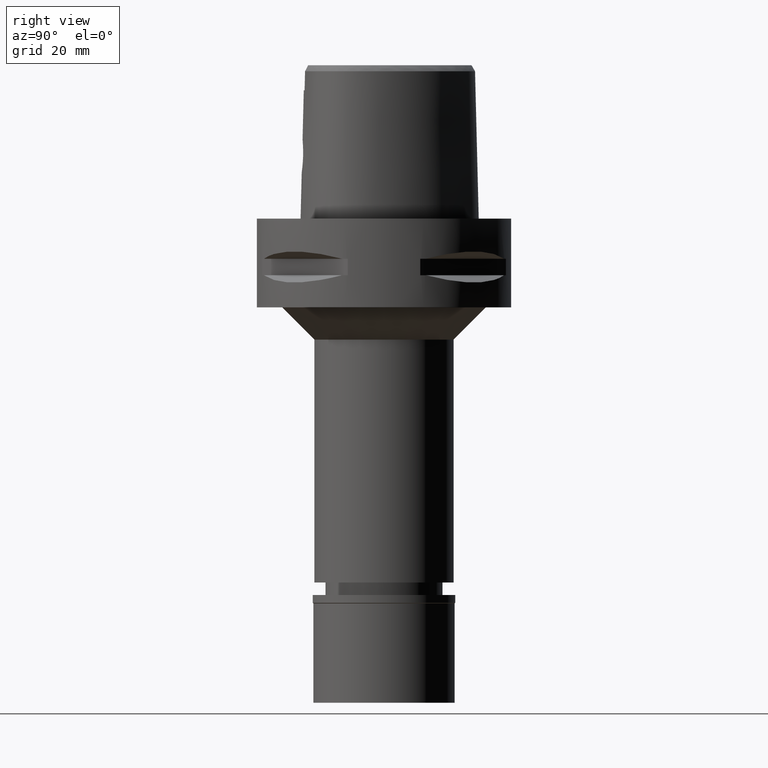
[diagram: clean part render]
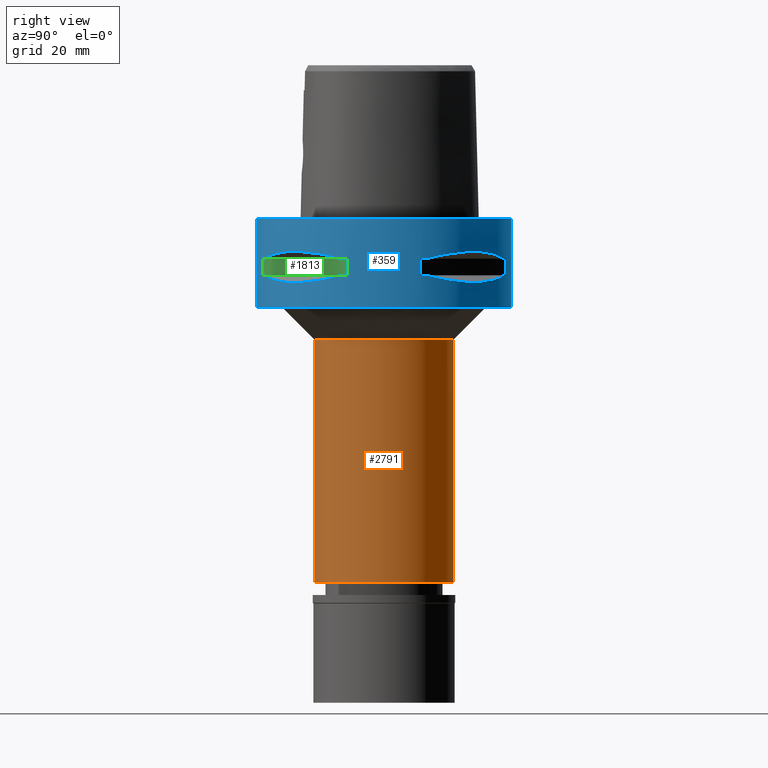
[diagram: same view with three faces highlighted in distinct colors, each labeled with its STEP entity id]
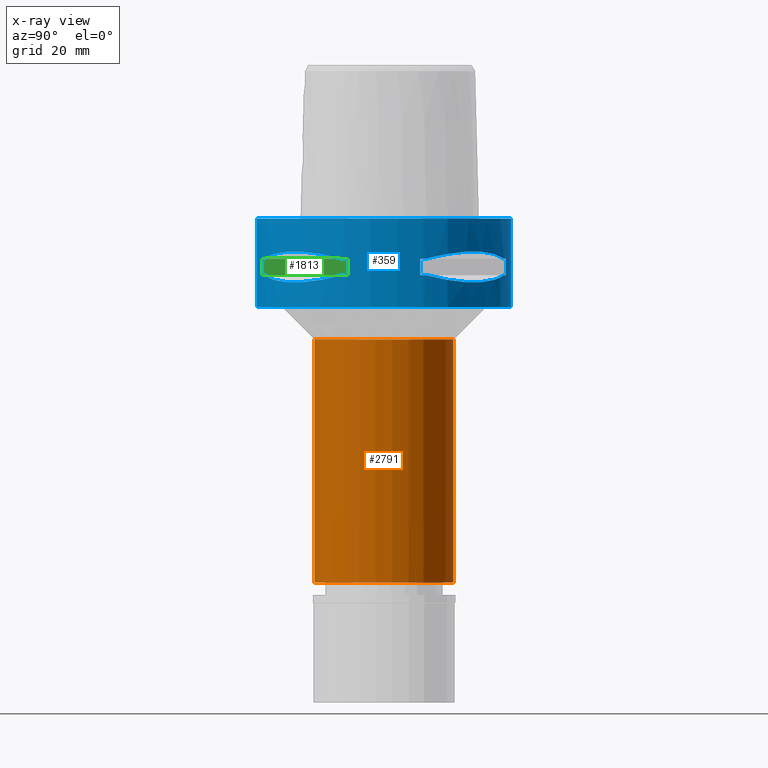
[diagram: x-ray of the same camera — body ghosted, the three highlighted faces saturated]
A machine part, right view with three faces highlighted in distinct colors.
The next image is the same camera in x-ray (body ghosted, the three faces saturated) — at least one of them is partly hidden behind the body in this view.
Their STEP definitions:

[orange] entity #2791 — the highlighted cylindrical surface (partial cylindrical patch) has radius 17.25 mm, axis along (0, 0, -1).
#21 = EDGE_CURVE ( 'NONE', #2501, #4795, #2390, .T. ) ;
#68 = AXIS2_PLACEMENT_3D ( 'NONE', #2771, #710, #4263 ) ;
#198 = DIRECTION ( 'NONE',  ( 0.0000000000000000000, 0.0000000000000000000, -1.000000000000000000 ) ) ;
#461 = DIRECTION ( 'NONE',  ( 0.0000000000000000000, 0.0000000000000000000, -1.000000000000000000 ) ) ;
#583 = VECTOR ( 'NONE', #3112, 1000.000000000000000 ) ;
#630 = CARTESIAN_POINT ( 'NONE',  ( 0.0000000000000000000, 0.0000000000000000000, -30.00000000000000000 ) ) ;
#710 = DIRECTION ( 'NONE',  ( 0.0000000000000000000, 0.0000000000000000000, 1.000000000000000000 ) ) ;
#742 = AXIS2_PLACEMENT_3D ( 'NONE', #3554, #461, #4408 ) ;
#798 = ORIENTED_EDGE ( 'NONE', *, *, #2126, .F. ) ;
#960 = CARTESIAN_POINT ( 'NONE',  ( 0.0000000000000000000, -17.25000000000000000, -30.00000000000000000 ) ) ;
#1630 = FACE_OUTER_BOUND ( 'NONE', #1893, .T. ) ;
#1632 = VERTEX_POINT ( 'NONE', #960 ) ;
#1783 = CARTESIAN_POINT ( 'NONE',  ( 0.0000000000000000000, -17.25000000000000000, -90.20000000000000284 ) ) ;
#1872 = ORIENTED_EDGE ( 'NONE', *, *, #3333, .T. ) ;
#1893 = EDGE_LOOP ( 'NONE', ( #3260, #1872, #1985, #798 ) ) ;
#1985 = ORIENTED_EDGE ( 'NONE', *, *, #21, .T. ) ;
#2126 = EDGE_CURVE ( 'NONE', #2373, #4795, #2614, .T. ) ;
#2373 = VERTEX_POINT ( 'NONE', #4975 ) ;
#2390 = CIRCLE ( 'NONE', #68, 17.25000000000000000 ) ;
#2421 = AXIS2_PLACEMENT_3D ( 'NONE', #630, #3024, #4921 ) ;
#2500 = CARTESIAN_POINT ( 'NONE',  ( 0.0000000000000000000, -17.25000000000000000, -30.00000000000000000 ) ) ;
#2501 = VERTEX_POINT ( 'NONE', #1783 ) ;
#2614 = LINE ( 'NONE', #3711, #2982 ) ;
#2771 = CARTESIAN_POINT ( 'NONE',  ( 0.0000000000000000000, 1.291390049700999962E-14, -90.20000000000000284 ) ) ;
#2791 = ADVANCED_FACE ( 'NONE', ( #1630 ), #4387, .T. ) ;
#2982 = VECTOR ( 'NONE', #198, 1000.000000000000000 ) ;
#3024 = DIRECTION ( 'NONE',  ( 0.0000000000000000000, 0.0000000000000000000, -1.000000000000000000 ) ) ;
#3112 = DIRECTION ( 'NONE',  ( 0.0000000000000000000, 0.0000000000000000000, -1.000000000000000000 ) ) ;
#3260 = ORIENTED_EDGE ( 'NONE', *, *, #4372, .T. ) ;
#3333 = EDGE_CURVE ( 'NONE', #1632, #2501, #3523, .T. ) ;
#3523 = LINE ( 'NONE', #2500, #583 ) ;
#3554 = CARTESIAN_POINT ( 'NONE',  ( 0.0000000000000000000, 1.291390049700999962E-14, 5.450000000000000178 ) ) ;
#3711 = CARTESIAN_POINT ( 'NONE',  ( 0.0000000000000000000, 17.25000000000000000, -30.00000000000000000 ) ) ;
#3761 = CARTESIAN_POINT ( 'NONE',  ( 0.0000000000000000000, 17.25000000000000000, -90.20000000000000284 ) ) ;
#4263 = DIRECTION ( 'NONE',  ( 0.0000000000000000000, -1.000000000000000000, 0.0000000000000000000 ) ) ;
#4372 = EDGE_CURVE ( 'NONE', #2373, #1632, #4698, .T. ) ;
#4387 = CYLINDRICAL_SURFACE ( 'NONE', #742, 17.25000000000000000 ) ;
#4408 = DIRECTION ( 'NONE',  ( 0.0000000000000000000, -1.000000000000000000, 0.0000000000000000000 ) ) ;
#4698 = CIRCLE ( 'NONE', #2421, 17.25000000000000000 ) ;
#4795 = VERTEX_POINT ( 'NONE', #3761 ) ;
#4921 = DIRECTION ( 'NONE',  ( 0.0000000000000000000, 1.000000000000000000, 0.0000000000000000000 ) ) ;
#4975 = CARTESIAN_POINT ( 'NONE',  ( 0.0000000000000000000, 17.25000000000000000, -30.00000000000000000 ) ) ;

[blue] entity #359 — the highlighted cylindrical surface (partial cylindrical patch) has radius 31.5 mm, axis along (0, 0, -1).
#27 = EDGE_CURVE ( 'NONE', #1301, #2772, #1161, .T. ) ;
#37 = CARTESIAN_POINT ( 'NONE',  ( 0.0000000000000000000, 1.291390049700999962E-14, -9.950000000000001066 ) ) ;
#78 = EDGE_CURVE ( 'NONE', #2821, #2772, #3616, .T. ) ;
#81 = DIRECTION ( 'NONE',  ( 0.0000000000000000000, 0.0000000000000000000, -1.000000000000000000 ) ) ;
#90 = VERTEX_POINT ( 'NONE', #1946 ) ;
#104 = CARTESIAN_POINT ( 'NONE',  ( 20.65093790438354659, 23.89673728053224266, -8.160641950982380877 ) ) ;
#113 = CARTESIAN_POINT ( 'NONE',  ( 26.60451452154948981, 16.86571563436761068, -15.39949295786298400 ) ) ;
#133 = EDGE_CURVE ( 'NONE', #817, #4701, #2794, .T. ) ;
#135 = DIRECTION ( 'NONE',  ( 0.0000000000000000000, 1.000000000000000000, 0.0000000000000000000 ) ) ;
#150 = ORIENTED_EDGE ( 'NONE', *, *, #3725, .T. ) ;
#196 = DIRECTION ( 'NONE',  ( 0.0000000000000000000, 0.0000000000000000000, 1.000000000000000000 ) ) ;
#202 = CARTESIAN_POINT ( 'NONE',  ( 0.0000000000000000000, -31.50000000000000000, -22.00000000000000000 ) ) ;
#247 = CARTESIAN_POINT ( 'NONE',  ( 14.89252659056626982, -27.86285265926842314, -8.892343702484653889 ) ) ;
#265 = DIRECTION ( 'NONE',  ( 0.0000000000000000000, -1.000000000000000000, 0.0000000000000000000 ) ) ;
#268 = ORIENTED_EDGE ( 'NONE', *, *, #1343, .F. ) ;
#296 = CARTESIAN_POINT ( 'NONE',  ( 26.70521063584643073, -16.70616724745833537, -8.624533381823839662 ) ) ;
#359 = ADVANCED_FACE ( 'NONE', ( #3149, #1916, #4644 ), #1134, .T. ) ;
#378 = CARTESIAN_POINT ( 'NONE',  ( 26.52527364208691196, -16.98999780422374428, -15.41788098766643778 ) ) ;
#391 = VERTEX_POINT ( 'NONE', #3461 ) ;
#409 = ORIENTED_EDGE ( 'NONE', *, *, #27, .F. ) ;
#415 = CARTESIAN_POINT ( 'NONE',  ( 10.44775724750000023, -29.71690375017999841, -9.950000000002001244 ) ) ;
#462 = CARTESIAN_POINT ( 'NONE',  ( 29.71690375017999841, 10.44775724750000023, -14.05000000000000071 ) ) ;
#473 = EDGE_CURVE ( 'NONE', #391, #890, #4832, .T. ) ;
#480 = ORIENTED_EDGE ( 'NONE', *, *, #473, .T. ) ;
#494 = CARTESIAN_POINT ( 'NONE',  ( 10.44775724750000023, 29.71690375017999841, -14.05000000000000071 ) ) ;
#497 = CARTESIAN_POINT ( 'NONE',  ( 29.31542262584909153, 11.58970337493671998, -14.35229357166876873 ) ) ;
#596 = CARTESIAN_POINT ( 'NONE',  ( 29.71690375017999841, 10.44775724750000023, -9.950000000002001244 ) ) ;
#609 = ORIENTED_EDGE ( 'NONE', *, *, #2227, .T. ) ;
#645 = DIRECTION ( 'NONE',  ( 0.0000000000000000000, 0.0000000000000000000, 1.000000000000000000 ) ) ;
#674 = DIRECTION ( 'NONE',  ( 0.2851174276831918153, -0.9584925938322735872, 0.0000000000000000000 ) ) ;
#715 = CARTESIAN_POINT ( 'NONE',  ( 18.59229662066524114, -25.43927894891024266, -8.371338736654152513 ) ) ;
#731 = AXIS2_PLACEMENT_3D ( 'NONE', #1615, #3984, #3134 ) ;
#736 = VERTEX_POINT ( 'NONE', #1750 ) ;
#783 = CARTESIAN_POINT ( 'NONE',  ( 26.01217882833934780, -17.76952662673609851, -15.52665221626610403 ) ) ;
#785 = DIRECTION ( 'NONE',  ( 0.0000000000000000000, 0.0000000000000000000, -1.000000000000000000 ) ) ;
#790 = VERTEX_POINT ( 'NONE', #4426 ) ;
#813 = CARTESIAN_POINT ( 'NONE',  ( 10.44775724750000023, 29.71690375017999841, -9.950000000002001244 ) ) ;
#817 = VERTEX_POINT ( 'NONE', #4863 ) ;
#833 = CARTESIAN_POINT ( 'NONE',  ( 28.91382665368659488, -12.73197616788688968, -14.65467361754156350 ) ) ;
#866 = CARTESIAN_POINT ( 'NONE',  ( 16.96123479565062198, 26.54368690921844731, -15.41365572341616819 ) ) ;
#890 = VERTEX_POINT ( 'NONE', #2363 ) ;
#940 = CARTESIAN_POINT ( 'NONE',  ( 11.58970337494564795, 29.31542262584650516, -9.647706428331577655 ) ) ;
#946 = EDGE_CURVE ( 'NONE', #2095, #90, #3057, .T. ) ;
#950 = CARTESIAN_POINT ( 'NONE',  ( 12.73197616791283870, 28.91382665367748928, -14.65467361754843800 ) ) ;
#965 = CARTESIAN_POINT ( 'NONE',  ( 16.70616724745935855, 26.70521063584607901, -8.624533381823574985 ) ) ;
#985 = ORIENTED_EDGE ( 'NONE', *, *, #3833, .F. ) ;
#992 = CARTESIAN_POINT ( 'NONE',  ( 26.52527364208612326, 16.98999780422257544, -8.582119012337276587 ) ) ;
#1005 = AXIS2_PLACEMENT_3D ( 'NONE', #2118, #196, #2565 ) ;
#1020 = LINE ( 'NONE', #4559, #1506 ) ;
#1041 = CARTESIAN_POINT ( 'NONE',  ( 26.64486562695888949, -16.80193241490598055, -8.610073162643717026 ) ) ;
#1056 = CARTESIAN_POINT ( 'NONE',  ( 30.19251670572000279, -8.981198972019999616, -14.05000000000000071 ) ) ;
#1103 = B_SPLINE_CURVE_WITH_KNOTS ( 'NONE', 3,
 ( #462, #497, #4051, #1395, #2144, #4388, #3686, #2093, #113, #1707, #3281, #4847, #2923, #4493, #4790, #2062, #2894, #1732, #3306, #1348, #866, #4470, #950, #3710 ),
 .UNSPECIFIED., .F., .F.,
 ( 4, 1, 1, 1, 1, 1, 2, 2, 2, 1, 1, 1, 1, 1, 2, 2, 4 ),
 ( 0.0000000000000000000, 0.1250000000000036360, 0.1875000000000056344, 0.2187500000000066336, 0.2343750000000070222, 0.2421875000000072164, 0.2460937500000072997, 0.2500000000000073830, 0.5000000000000048850, 0.6250000000000037748, 0.6875000000000031086, 0.7187500000000027756, 0.7343750000000025535, 0.7421875000000023315, 0.7460937500000024425, 0.7500000000000025535, 1.000000000000000000 ),
 .UNSPECIFIED. ) ;
#1134 = CYLINDRICAL_SURFACE ( 'NONE', #1326, 31.50000000000000000 ) ;
#1152 = CARTESIAN_POINT ( 'NONE',  ( 16.89910283486738862, -26.58330558444628977, -15.40446471307545906 ) ) ;
#1161 = LINE ( 'NONE', #3125, #1576 ) ;
#1166 = AXIS2_PLACEMENT_3D ( 'NONE', #1730, #2944, #135 ) ;
#1209 = CARTESIAN_POINT ( 'NONE',  ( 16.70616724746396642, -26.70521063584539334, -15.37546661818095473 ) ) ;
#1252 = DIRECTION ( 'NONE',  ( 0.0000000000000000000, 0.0000000000000000000, -1.000000000000000000 ) ) ;
#1301 = VERTEX_POINT ( 'NONE', #1387 ) ;
#1326 = AXIS2_PLACEMENT_3D ( 'NONE', #4259, #4594, #265 ) ;
#1334 = CIRCLE ( 'NONE', #5008, 31.50000000000000711 ) ;
#1343 = EDGE_CURVE ( 'NONE', #2821, #4844, #2193, .T. ) ;
#1348 = CARTESIAN_POINT ( 'NONE',  ( 16.98999780422272465, 26.52527364208734895, -15.41788098766619974 ) ) ;
#1387 = CARTESIAN_POINT ( 'NONE',  ( 8.981198972019999616, 30.19251670572000279, -14.05000000000000071 ) ) ;
#1395 = CARTESIAN_POINT ( 'NONE',  ( 27.64634172018763536, 15.11986997308868830, -15.11207862403486146 ) ) ;
#1396 = DIRECTION ( 'NONE',  ( 0.9433937698468619626, 0.3316748332540863653, 0.0000000000000000000 ) ) ;
#1401 = AXIS2_PLACEMENT_3D ( 'NONE', #1965, #3911, #2380 ) ;
#1406 = ORIENTED_EDGE ( 'NONE', *, *, #1747, .T. ) ;
#1412 = CARTESIAN_POINT ( 'NONE',  ( 16.48208282229046162, 26.84474411198835497, -8.659051162220773534 ) ) ;
#1439 = DIRECTION ( 'NONE',  ( 0.0000000000000000000, 0.0000000000000000000, -1.000000000000000000 ) ) ;
#1447 = CARTESIAN_POINT ( 'NONE',  ( 30.19251670572000279, -8.981198972016999349, -14.05000000000000071 ) ) ;
#1506 = VECTOR ( 'NONE', #1439, 1000.000000000000000 ) ;
#1507 = CARTESIAN_POINT ( 'NONE',  ( 28.62019653469107894, -13.25636937903083101, -9.251117744589583580 ) ) ;
#1516 = VECTOR ( 'NONE', #785, 1000.000000000000000 ) ;
#1522 = CARTESIAN_POINT ( 'NONE',  ( 26.48642424310494903, -17.05047092244668505, -15.42670883408004023 ) ) ;
#1538 = CARTESIAN_POINT ( 'NONE',  ( 30.19251670572000279, 8.981198972019999616, -9.950000000000001066 ) ) ;
#1543 = CARTESIAN_POINT ( 'NONE',  ( 16.80193241490956879, -26.64486562695862659, -15.38992683736056932 ) ) ;
#1576 = VECTOR ( 'NONE', #1990, 1000.000000000000000 ) ;
#1615 = CARTESIAN_POINT ( 'NONE',  ( 0.0000000000000000000, 1.291390049700999962E-14, -14.05000000000000071 ) ) ;
#1656 = CIRCLE ( 'NONE', #3224, 31.50000000000001776 ) ;
#1671 = VECTOR ( 'NONE', #81, 1000.000000000000000 ) ;
#1680 = CARTESIAN_POINT ( 'NONE',  ( 29.71690375017999841, -10.44775724750000023, -9.950000000002001244 ) ) ;
#1707 = CARTESIAN_POINT ( 'NONE',  ( 26.58330558444617608, 16.89910283486720743, -15.40446471307533827 ) ) ;
#1723 = CARTESIAN_POINT ( 'NONE',  ( 26.01217882833838502, 17.76952662673090444, -8.473347783739322736 ) ) ;
#1727 = EDGE_CURVE ( 'NONE', #3763, #2704, #1759, .T. ) ;
#1730 = CARTESIAN_POINT ( 'NONE',  ( 0.0000000000000000000, 1.291390049700999962E-14, 1.065814103639999922E-14 ) ) ;
#1732 = CARTESIAN_POINT ( 'NONE',  ( 17.14106442934976826, 26.42800887047588532, -15.43984550238772790 ) ) ;
#1747 = EDGE_CURVE ( 'NONE', #1301, #2677, #1656, .T. ) ;
#1750 = CARTESIAN_POINT ( 'NONE',  ( 29.71690375017999841, 10.44775724750000023, -14.05000000000000071 ) ) ;
#1759 = B_SPLINE_CURVE_WITH_KNOTS ( 'NONE', 3,
 ( #4242, #4577, #1507, #3773, #3009, #2643, #296, #1041, #3419, #1821, #4217, #2701, #3084, #4984, #715, #2288, #3392, #2310, #2620, #3866, #3795, #247, #3369, #3030 ),
 .UNSPECIFIED., .F., .F.,
 ( 4, 1, 1, 1, 1, 1, 2, 2, 2, 1, 1, 1, 1, 1, 2, 2, 4 ),
 ( 0.0000000000000000000, 0.1249999999999901190, 0.1874999999999851785, 0.2187499999999827915, 0.2343749999999815425, 0.2421874999999808487, 0.2460937499999805711, 0.2499999999999802935, 0.4999999999999875655, 0.6249999999999914513, 0.6874999999999933387, 0.7187499999999943379, 0.7343749999999947820, 0.7421874999999952260, 0.7460937499999953371, 0.7499999999999954481, 1.000000000000000000 ),
 .UNSPECIFIED. ) ;
#1767 = VECTOR ( 'NONE', #1860, 1000.000000000000000 ) ;
#1819 = VECTOR ( 'NONE', #2406, 1000.000000000000000 ) ;
#1821 = CARTESIAN_POINT ( 'NONE',  ( 26.58330558444509251, -16.89910283486691611, -8.595535286928141616 ) ) ;
#1849 = CARTESIAN_POINT ( 'NONE',  ( 0.0000000000000000000, 1.291390049700999962E-14, -14.05000000000000071 ) ) ;
#1854 = CARTESIAN_POINT ( 'NONE',  ( 30.19251670572000279, 8.981198972016999349, -14.05000000000000071 ) ) ;
#1860 = DIRECTION ( 'NONE',  ( 0.0000000000000000000, 0.0000000000000000000, 1.000000000000000000 ) ) ;
#1889 = ORIENTED_EDGE ( 'NONE', *, *, #3793, .F. ) ;
#1916 = FACE_BOUND ( 'NONE', #3501, .T. ) ;
#1946 = CARTESIAN_POINT ( 'NONE',  ( 29.71690375017999841, -10.44775724750000023, -14.05000000000000071 ) ) ;
#1965 = CARTESIAN_POINT ( 'NONE',  ( 0.0000000000000000000, 1.291390049700999962E-14, -9.950000000000001066 ) ) ;
#1980 = CARTESIAN_POINT ( 'NONE',  ( 26.42800887047440028, -17.14106442935327124, -15.43984550238855391 ) ) ;
#1990 = DIRECTION ( 'NONE',  ( 0.0000000000000000000, 0.0000000000000000000, 1.000000000000000000 ) ) ;
#2017 = ORIENTED_EDGE ( 'NONE', *, *, #3750, .T. ) ;
#2056 = ORIENTED_EDGE ( 'NONE', *, *, #133, .F. ) ;
#2062 = CARTESIAN_POINT ( 'NONE',  ( 17.76952662672345795, 26.01217882834468398, -15.52665221626313041 ) ) ;
#2081 = CIRCLE ( 'NONE', #3323, 31.50000000000001776 ) ;
#2084 = CARTESIAN_POINT ( 'NONE',  ( 16.89910283486650044, 26.58330558444540515, -8.595535286928189578 ) ) ;
#2093 = CARTESIAN_POINT ( 'NONE',  ( 26.64486562695979188, 16.80193241490626122, -15.38992683735969003 ) ) ;
#2095 = VERTEX_POINT ( 'NONE', #1056 ) ;
#2118 = CARTESIAN_POINT ( 'NONE',  ( 0.0000000000000000000, 1.291390049700999962E-14, -22.00000000000000000 ) ) ;
#2137 = CARTESIAN_POINT ( 'NONE',  ( 13.25636937903931489, 28.62019653468809466, -9.251117744587338265 ) ) ;
#2144 = CARTESIAN_POINT ( 'NONE',  ( 27.11872488589586183, 16.03138450077837618, -15.26880420107759129 ) ) ;
#2193 = B_SPLINE_CURVE_WITH_KNOTS ( 'NONE', 3,
 ( #3652, #940, #2137, #2533, #4483, #1412, #965, #2556, #4015, #2084, #4508, #104, #3274, #4810, #2961, #1723, #4092, #2885, #3351, #992, #4429, #2582, #4123, #596 ),
 .UNSPECIFIED., .F., .F.,
 ( 4, 1, 1, 1, 1, 1, 2, 2, 2, 1, 1, 1, 1, 1, 2, 2, 4 ),
 ( 0.0000000000000000000, 0.1249999999999969469, 0.1874999999999954203, 0.2187499999999947264, 0.2343749999999941436, 0.2421874999999936162, 0.2460937499999933387, 0.2499999999999930889, 0.4999999999999961142, 0.6249999999999975575, 0.6874999999999982236, 0.7187499999999982236, 0.7343749999999982236, 0.7421874999999983347, 0.7460937499999982236, 0.7499999999999981126, 1.000000000000000000 ),
 .UNSPECIFIED. ) ;
#2207 = LINE ( 'NONE', #1447, #1767 ) ;
#2227 = EDGE_CURVE ( 'NONE', #736, #3048, #1334, .T. ) ;
#2229 = DIRECTION ( 'NONE',  ( 0.0000000000000000000, 0.0000000000000000000, -1.000000000000000000 ) ) ;
#2288 = CARTESIAN_POINT ( 'NONE',  ( 17.76952662672849925, -26.01217882834354000, -8.473347783738203631 ) ) ;
#2310 = CARTESIAN_POINT ( 'NONE',  ( 17.14106442935058894, -26.42800887047499359, -8.560154497615220848 ) ) ;
#2317 = DIRECTION ( 'NONE',  ( 0.0000000000000000000, 0.0000000000000000000, 1.000000000000000000 ) ) ;
#2330 = DIRECTION ( 'NONE',  ( 0.0000000000000000000, 0.0000000000000000000, 1.000000000000000000 ) ) ;
#2363 = CARTESIAN_POINT ( 'NONE',  ( 8.981198972016999349, -30.19251670572000279, -14.05000000000000071 ) ) ;
#2380 = DIRECTION ( 'NONE',  ( 0.3316748332540863653, 0.9433937698468619626, 0.0000000000000000000 ) ) ;
#2397 = ORIENTED_EDGE ( 'NONE', *, *, #4728, .T. ) ;
#2403 = DIRECTION ( 'NONE',  ( 0.9433937698468619626, -0.3316748332540863653, 0.0000000000000000000 ) ) ;
#2406 = DIRECTION ( 'NONE',  ( 0.0000000000000000000, 0.0000000000000000000, -1.000000000000000000 ) ) ;
#2424 = CARTESIAN_POINT ( 'NONE',  ( 15.11986997312413017, -27.64634172017517599, -15.11207862404423352 ) ) ;
#2519 = ORIENTED_EDGE ( 'NONE', *, *, #2855, .T. ) ;
#2533 = CARTESIAN_POINT ( 'NONE',  ( 15.11986997309980474, 27.64634172018364922, -8.887921375965158077 ) ) ;
#2556 = CARTESIAN_POINT ( 'NONE',  ( 16.80193241490657030, 26.64486562695868344, -8.610073162643560707 ) ) ;
#2565 = DIRECTION ( 'NONE',  ( 0.0000000000000000000, -1.000000000000000000, 0.0000000000000000000 ) ) ;
#2582 = CARTESIAN_POINT ( 'NONE',  ( 27.86285265925623023, 14.89252659060093720, -8.892343702475475453 ) ) ;
#2620 = CARTESIAN_POINT ( 'NONE',  ( 17.05047092244479856, -26.48642424310496679, -8.573291165923654589 ) ) ;
#2630 = CARTESIAN_POINT ( 'NONE',  ( 0.0000000000000000000, 1.291390049700999962E-14, -9.950000000000001066 ) ) ;
#2643 = CARTESIAN_POINT ( 'NONE',  ( 26.84474411198906196, -16.48208282228847565, -8.659051162221302889 ) ) ;
#2677 = VERTEX_POINT ( 'NONE', #494 ) ;
#2701 = CARTESIAN_POINT ( 'NONE',  ( 23.89673728053854518, -20.65093790437009247, -8.160641950985311865 ) ) ;
#2704 = VERTEX_POINT ( 'NONE', #415 ) ;
#2735 = CARTESIAN_POINT ( 'NONE',  ( 23.08532645887072476, -21.46242677080184436, -15.83938991065908120 ) ) ;
#2761 = CARTESIAN_POINT ( 'NONE',  ( 26.29071741523342709, -17.35163608580722894, -15.46976201925860828 ) ) ;
#2772 = VERTEX_POINT ( 'NONE', #3152 ) ;
#2781 = CARTESIAN_POINT ( 'NONE',  ( 29.71690375017999841, 10.44775724750000023, -9.950000000002001244 ) ) ;
#2786 = CARTESIAN_POINT ( 'NONE',  ( 29.71690375017999841, -10.44775724750000023, -14.05000000000000071 ) ) ;
#2794 = LINE ( 'NONE', #4338, #1819 ) ;
#2808 = CARTESIAN_POINT ( 'NONE',  ( 16.03138450079904231, -27.11872488588858587, -15.26880420108306247 ) ) ;
#2821 = VERTEX_POINT ( 'NONE', #813 ) ;
#2830 = DIRECTION ( 'NONE',  ( 0.3316748332540863653, -0.9433937698468619626, 0.0000000000000000000 ) ) ;
#2832 = AXIS2_PLACEMENT_3D ( 'NONE', #2630, #645, #674 ) ;
#2855 = EDGE_CURVE ( 'NONE', #817, #3912, #3396, .T. ) ;
#2885 = CARTESIAN_POINT ( 'NONE',  ( 26.42800887047356895, 17.14106442935124619, -8.560154497615531710 ) ) ;
#2891 = AXIS2_PLACEMENT_3D ( 'NONE', #3787, #1252, #2830 ) ;
#2894 = CARTESIAN_POINT ( 'NONE',  ( 17.35163608580045391, 26.29071741523629768, -15.46976201925701133 ) ) ;
#2903 = VERTEX_POINT ( 'NONE', #3661 ) ;
#2923 = CARTESIAN_POINT ( 'NONE',  ( 21.46242677078534911, 23.08532645887771650, -15.83938991065519630 ) ) ;
#2944 = DIRECTION ( 'NONE',  ( 0.0000000000000000000, 0.0000000000000000000, -1.000000000000000000 ) ) ;
#2961 = CARTESIAN_POINT ( 'NONE',  ( 25.43927894890140351, 18.59229662066938005, -8.371338736656072754 ) ) ;
#3009 = CARTESIAN_POINT ( 'NONE',  ( 27.11872488589446917, -16.03138450078079202, -8.731195798924915152 ) ) ;
#3030 = CARTESIAN_POINT ( 'NONE',  ( 10.44775724750000023, -29.71690375017999841, -9.950000000002001244 ) ) ;
#3048 = VERTEX_POINT ( 'NONE', #1854 ) ;
#3057 = CIRCLE ( 'NONE', #731, 31.50000000000001776 ) ;
#3070 = EDGE_CURVE ( 'NONE', #3912, #3579, #1020, .T. ) ;
#3084 = CARTESIAN_POINT ( 'NONE',  ( 21.46242677079188610, -23.08532645887616397, -8.160610089345704310 ) ) ;
#3125 = CARTESIAN_POINT ( 'NONE',  ( 8.981198972016999349, 30.19251670572000279, -14.05000000000000071 ) ) ;
#3134 = DIRECTION ( 'NONE',  ( 0.9584925938322735872, -0.2851174276831918153, 0.0000000000000000000 ) ) ;
#3149 = FACE_OUTER_BOUND ( 'NONE', #3610, .T. ) ;
#3152 = CARTESIAN_POINT ( 'NONE',  ( 8.981198972016999349, 30.19251670572000279, -9.950000000000001066 ) ) ;
#3172 = EDGE_CURVE ( 'NONE', #3186, #4844, #2081, .T. ) ;
#3176 = CARTESIAN_POINT ( 'NONE',  ( 16.48208282229863286, -26.84474411198628374, -15.34094883778463903 ) ) ;
#3186 = VERTEX_POINT ( 'NONE', #1538 ) ;
#3201 = CARTESIAN_POINT ( 'NONE',  ( 8.981198972016999349, -30.19251670572000279, -9.950000000000001066 ) ) ;
#3224 = AXIS2_PLACEMENT_3D ( 'NONE', #1849, #4961, #4906 ) ;
#3274 = CARTESIAN_POINT ( 'NONE',  ( 23.08532645886942092, 21.46242677079501959, -8.160610089347166252 ) ) ;
#3281 = CARTESIAN_POINT ( 'NONE',  ( 25.32725744468093509, 18.86897208074246635, -15.69588095934180316 ) ) ;
#3306 = CARTESIAN_POINT ( 'NONE',  ( 17.05047092244466000, 26.48642424310579813, -15.42670883407955884 ) ) ;
#3323 = AXIS2_PLACEMENT_3D ( 'NONE', #3896, #2317, #3850 ) ;
#3331 = ORIENTED_EDGE ( 'NONE', *, *, #4100, .F. ) ;
#3338 = LINE ( 'NONE', #3634, #1671 ) ;
#3339 = CARTESIAN_POINT ( 'NONE',  ( 0.0000000000000000000, 1.291390049700999962E-14, -14.05000000000000071 ) ) ;
#3351 = CARTESIAN_POINT ( 'NONE',  ( 26.48642424310412835, 17.05047092244518225, -8.573291165923828672 ) ) ;
#3369 = CARTESIAN_POINT ( 'NONE',  ( 12.73197616787539488, -28.91382665369141591, -9.345326382464072879 ) ) ;
#3392 = CARTESIAN_POINT ( 'NONE',  ( 17.35163608580277383, -26.29071741523532424, -8.530237980745361881 ) ) ;
#3396 = CIRCLE ( 'NONE', #1166, 31.50000000000000000 ) ;
#3403 = CARTESIAN_POINT ( 'NONE',  ( 0.0000000000000000000, 31.50000000000000000, -22.00000000000000000 ) ) ;
#3419 = CARTESIAN_POINT ( 'NONE',  ( 26.60451452154862650, -16.86571563436707777, -8.600507042140504765 ) ) ;
#3432 = CARTESIAN_POINT ( 'NONE',  ( 0.0000000000000000000, -31.50000000000000000, 1.065814103639999922E-14 ) ) ;
#3443 = B_SPLINE_CURVE_WITH_KNOTS ( 'NONE', 3,
 ( #4713, #3903, #4304, #2424, #2808, #3176, #1209, #1543, #4663, #1152, #3880, #3925, #2735, #4688, #3511, #783, #2761, #1980, #1522, #378, #5045, #4280, #833, #2786 ),
 .UNSPECIFIED., .F., .F.,
 ( 4, 1, 1, 1, 1, 1, 2, 2, 2, 1, 1, 1, 1, 1, 2, 2, 4 ),
 ( 0.0000000000000000000, 0.1250000000000019429, 0.1875000000000029143, 0.2187500000000035250, 0.2343750000000039135, 0.2421875000000040801, 0.2460937500000041356, 0.2500000000000041633, 0.4999999999999987788, 0.6249999999999961142, 0.6874999999999948930, 0.7187499999999945599, 0.7343749999999943379, 0.7421874999999941158, 0.7460937499999938938, 0.7499999999999937828, 1.000000000000000000 ),
 .UNSPECIFIED. ) ;
#3461 = CARTESIAN_POINT ( 'NONE',  ( 10.44775724750000023, -29.71690375017999841, -14.05000000000000071 ) ) ;
#3501 = EDGE_LOOP ( 'NONE', ( #150, #985, #3533, #3331, #480, #3957, #2397, #4882 ) ) ;
#3511 = CARTESIAN_POINT ( 'NONE',  ( 25.43927894890251551, -18.59229662067769340, -15.62866126335070049 ) ) ;
#3533 = ORIENTED_EDGE ( 'NONE', *, *, #946, .T. ) ;
#3579 = VERTEX_POINT ( 'NONE', #202 ) ;
#3589 = ORIENTED_EDGE ( 'NONE', *, *, #3070, .T. ) ;
#3610 = EDGE_LOOP ( 'NONE', ( #2519, #3589, #2017, #2056 ) ) ;
#3616 = CIRCLE ( 'NONE', #1401, 31.50000000000000711 ) ;
#3634 = CARTESIAN_POINT ( 'NONE',  ( 30.19251670572000279, 8.981198972016999349, -9.950000000000001066 ) ) ;
#3652 = CARTESIAN_POINT ( 'NONE',  ( 10.44775724750000023, 29.71690375017999841, -9.950000000002001244 ) ) ;
#3661 = CARTESIAN_POINT ( 'NONE',  ( 8.981198972019999616, -30.19251670572000279, -9.950000000000001066 ) ) ;
#3686 = CARTESIAN_POINT ( 'NONE',  ( 26.70521063584740062, 16.70616724745824655, -15.37546661817944127 ) ) ;
#3710 = CARTESIAN_POINT ( 'NONE',  ( 10.44775724750000023, 29.71690375017999841, -14.05000000000000071 ) ) ;
#3724 = CIRCLE ( 'NONE', #1005, 31.50000000000000000 ) ;
#3725 = EDGE_CURVE ( 'NONE', #3763, #790, #4762, .T. ) ;
#3750 = EDGE_CURVE ( 'NONE', #3579, #4701, #3724, .T. ) ;
#3763 = VERTEX_POINT ( 'NONE', #1680 ) ;
#3773 = CARTESIAN_POINT ( 'NONE',  ( 27.64634172018588032, -15.11986997309343472, -8.887921375966845616 ) ) ;
#3787 = CARTESIAN_POINT ( 'NONE',  ( 0.0000000000000000000, 1.291390049700999962E-14, -14.05000000000000071 ) ) ;
#3793 = EDGE_CURVE ( 'NONE', #736, #2677, #1103, .T. ) ;
#3795 = CARTESIAN_POINT ( 'NONE',  ( 16.96123479565038394, -26.54368690921743479, -8.586344276587260183 ) ) ;
#3805 = EDGE_CURVE ( 'NONE', #3186, #3048, #3338, .T. ) ;
#3833 = EDGE_CURVE ( 'NONE', #2095, #790, #2207, .T. ) ;
#3850 = DIRECTION ( 'NONE',  ( 0.9584925938322735872, 0.2851174276831918153, 0.0000000000000000000 ) ) ;
#3866 = CARTESIAN_POINT ( 'NONE',  ( 16.98999780422239425, -26.52527364208654603, -8.582119012337193098 ) ) ;
#3880 = CARTESIAN_POINT ( 'NONE',  ( 18.86897208073048660, -25.32725744467385454, -15.69588095933403160 ) ) ;
#3896 = CARTESIAN_POINT ( 'NONE',  ( 0.0000000000000000000, 1.291390049700999962E-14, -9.950000000000001066 ) ) ;
#3903 = CARTESIAN_POINT ( 'NONE',  ( 11.58970337496372238, -29.31542262583958802, -14.35229357167590614 ) ) ;
#3911 = DIRECTION ( 'NONE',  ( 0.0000000000000000000, 0.0000000000000000000, 1.000000000000000000 ) ) ;
#3912 = VERTEX_POINT ( 'NONE', #3432 ) ;
#3925 = CARTESIAN_POINT ( 'NONE',  ( 20.65093790438460530, -23.89673728052242296, -15.83935804901696542 ) ) ;
#3950 = LINE ( 'NONE', #3201, #1516 ) ;
#3957 = ORIENTED_EDGE ( 'NONE', *, *, #4622, .F. ) ;
#3984 = DIRECTION ( 'NONE',  ( 0.0000000000000000000, 0.0000000000000000000, -1.000000000000000000 ) ) ;
#4015 = CARTESIAN_POINT ( 'NONE',  ( 16.86571563436737975, 26.60451452154853413, -8.600507042140424829 ) ) ;
#4051 = CARTESIAN_POINT ( 'NONE',  ( 28.62019653469295832, 13.25636937902403645, -14.74888225541133124 ) ) ;
#4092 = CARTESIAN_POINT ( 'NONE',  ( 26.29071741523256733, 17.35163608580407058, -8.530237980745962290 ) ) ;
#4100 = EDGE_CURVE ( 'NONE', #391, #90, #3443, .T. ) ;
#4114 = AXIS2_PLACEMENT_3D ( 'NONE', #37, #2330, #2403 ) ;
#4123 = CARTESIAN_POINT ( 'NONE',  ( 28.91382665367922655, 12.73197616791006936, -9.345326382454889114 ) ) ;
#4217 = CARTESIAN_POINT ( 'NONE',  ( 25.32725744469765772, -18.86897208070858056, -8.304119040668121343 ) ) ;
#4242 = CARTESIAN_POINT ( 'NONE',  ( 29.71690375017999841, -10.44775724750000023, -9.950000000002001244 ) ) ;
#4259 = CARTESIAN_POINT ( 'NONE',  ( 0.0000000000000000000, 1.291390049700999962E-14, 5.450000000000000178 ) ) ;
#4269 = ORIENTED_EDGE ( 'NONE', *, *, #3805, .F. ) ;
#4280 = CARTESIAN_POINT ( 'NONE',  ( 27.86285265926396093, -14.89252659057812345, -15.10765629752127559 ) ) ;
#4304 = CARTESIAN_POINT ( 'NONE',  ( 13.25636937907128399, -28.62019653467633518, -14.74888225542383857 ) ) ;
#4314 = EDGE_LOOP ( 'NONE', ( #4656, #409, #1406, #1889, #609, #4269, #4826, #268 ) ) ;
#4338 = CARTESIAN_POINT ( 'NONE',  ( 0.0000000000000000000, 31.50000000000000000, 0.0000000000000000000 ) ) ;
#4388 = CARTESIAN_POINT ( 'NONE',  ( 26.84474411199017752, 16.48208282228755550, -15.34094883778170093 ) ) ;
#4426 = CARTESIAN_POINT ( 'NONE',  ( 30.19251670572000279, -8.981198972016999349, -9.950000000000001066 ) ) ;
#4429 = CARTESIAN_POINT ( 'NONE',  ( 26.54368690921762308, 16.96123479564984038, -8.586344276587400515 ) ) ;
#4470 = CARTESIAN_POINT ( 'NONE',  ( 14.89252659060408668, 27.86285265925483046, -15.10765629752815009 ) ) ;
#4483 = CARTESIAN_POINT ( 'NONE',  ( 16.03138450078449750, 27.11872488589316887, -8.731195798923925722 ) ) ;
#4493 = CARTESIAN_POINT ( 'NONE',  ( 20.18579225686753986, 24.23018836744649462, -15.78559396979147422 ) ) ;
#4508 = CARTESIAN_POINT ( 'NONE',  ( 18.86897208073565579, 25.32725744467773410, -8.304119040665193907 ) ) ;
#4559 = CARTESIAN_POINT ( 'NONE',  ( 0.0000000000000000000, -31.50000000000000000, 0.0000000000000000000 ) ) ;
#4577 = CARTESIAN_POINT ( 'NONE',  ( 29.31542262584821401, -11.58970337494080027, -9.647706428332865514 ) ) ;
#4594 = DIRECTION ( 'NONE',  ( 0.0000000000000000000, 0.0000000000000000000, -1.000000000000000000 ) ) ;
#4622 = EDGE_CURVE ( 'NONE', #2903, #890, #3950, .T. ) ;
#4644 = FACE_BOUND ( 'NONE', #4314, .T. ) ;
#4656 = ORIENTED_EDGE ( 'NONE', *, *, #78, .T. ) ;
#4663 = CARTESIAN_POINT ( 'NONE',  ( 16.86571563436929466, -26.60451452154890717, -15.39949295786343164 ) ) ;
#4688 = CARTESIAN_POINT ( 'NONE',  ( 24.23018836743425197, -20.18579225689640921, -15.78559396979826346 ) ) ;
#4701 = VERTEX_POINT ( 'NONE', #3403 ) ;
#4713 = CARTESIAN_POINT ( 'NONE',  ( 10.44775724750000023, -29.71690375017999841, -14.05000000000000071 ) ) ;
#4728 = EDGE_CURVE ( 'NONE', #2903, #2704, #5026, .T. ) ;
#4762 = CIRCLE ( 'NONE', #4114, 31.50000000000000711 ) ;
#4790 = CARTESIAN_POINT ( 'NONE',  ( 18.59229662065603605, 25.43927894891167796, -15.62866126334560413 ) ) ;
#4810 = CARTESIAN_POINT ( 'NONE',  ( 24.23018836743293747, 20.18579225688547396, -8.214406030209653764 ) ) ;
#4826 = ORIENTED_EDGE ( 'NONE', *, *, #3172, .T. ) ;
#4832 = CIRCLE ( 'NONE', #2891, 31.50000000000000711 ) ;
#4844 = VERTEX_POINT ( 'NONE', #2781 ) ;
#4847 = CARTESIAN_POINT ( 'NONE',  ( 23.89673728055542767, 20.65093790437063248, -15.83935804902473343 ) ) ;
#4863 = CARTESIAN_POINT ( 'NONE',  ( 0.0000000000000000000, 31.50000000000000000, 1.065814103639999922E-14 ) ) ;
#4882 = ORIENTED_EDGE ( 'NONE', *, *, #1727, .F. ) ;
#4906 = DIRECTION ( 'NONE',  ( 0.2851174276831918153, 0.9584925938322735872, 0.0000000000000000000 ) ) ;
#4961 = DIRECTION ( 'NONE',  ( 0.0000000000000000000, 0.0000000000000000000, -1.000000000000000000 ) ) ;
#4984 = CARTESIAN_POINT ( 'NONE',  ( 20.18579225687997081, -24.23018836744471116, -8.214406030207092257 ) ) ;
#5008 = AXIS2_PLACEMENT_3D ( 'NONE', #3339, #2229, #1396 ) ;
#5026 = CIRCLE ( 'NONE', #2832, 31.50000000000001776 ) ;
#5045 = CARTESIAN_POINT ( 'NONE',  ( 26.54368690921830520, -16.96123479565102699, -15.41365572341627121 ) ) ;

[green] entity #1813 — the highlighted planar face has unit normal (-0.7071, 0.7071, 0).
#147 = EDGE_CURVE ( 'NONE', #890, #2095, #2018, .T. ) ;
#342 = PLANE ( 'NONE',  #3868 ) ;
#611 = ORIENTED_EDGE ( 'NONE', *, *, #4622, .T. ) ;
#775 = LINE ( 'NONE', #2025, #3864 ) ;
#785 = DIRECTION ( 'NONE',  ( 0.0000000000000000000, 0.0000000000000000000, -1.000000000000000000 ) ) ;
#790 = VERTEX_POINT ( 'NONE', #4426 ) ;
#794 = DIRECTION ( 'NONE',  ( -0.7071067811865475727, 0.7071067811865475727, 0.0000000000000000000 ) ) ;
#890 = VERTEX_POINT ( 'NONE', #2363 ) ;
#1018 = EDGE_CURVE ( 'NONE', #2903, #790, #775, .T. ) ;
#1056 = CARTESIAN_POINT ( 'NONE',  ( 30.19251670572000279, -8.981198972019999616, -14.05000000000000071 ) ) ;
#1165 = CARTESIAN_POINT ( 'NONE',  ( 31.96122650962999856, -7.212489168103000559, -9.950000000000001066 ) ) ;
#1447 = CARTESIAN_POINT ( 'NONE',  ( 30.19251670572000279, -8.981198972016999349, -14.05000000000000071 ) ) ;
#1502 = DIRECTION ( 'NONE',  ( 0.7071067811865474617, 0.7071067811865474617, 0.0000000000000000000 ) ) ;
#1516 = VECTOR ( 'NONE', #785, 1000.000000000000000 ) ;
#1767 = VECTOR ( 'NONE', #1860, 1000.000000000000000 ) ;
#1813 = ADVANCED_FACE ( 'NONE', ( #4266 ), #342, .F. ) ;
#1860 = DIRECTION ( 'NONE',  ( 0.0000000000000000000, 0.0000000000000000000, 1.000000000000000000 ) ) ;
#2018 = LINE ( 'NONE', #3583, #4510 ) ;
#2025 = CARTESIAN_POINT ( 'NONE',  ( 8.981198972016999349, -30.19251670572000279, -9.950000000000001066 ) ) ;
#2095 = VERTEX_POINT ( 'NONE', #1056 ) ;
#2154 = ORIENTED_EDGE ( 'NONE', *, *, #3833, .T. ) ;
#2207 = LINE ( 'NONE', #1447, #1767 ) ;
#2363 = CARTESIAN_POINT ( 'NONE',  ( 8.981198972016999349, -30.19251670572000279, -14.05000000000000071 ) ) ;
#2778 = DIRECTION ( 'NONE',  ( 0.7071067811865474617, 0.7071067811865474617, 0.0000000000000000000 ) ) ;
#2903 = VERTEX_POINT ( 'NONE', #3661 ) ;
#2957 = EDGE_LOOP ( 'NONE', ( #3514, #611, #4555, #2154 ) ) ;
#3201 = CARTESIAN_POINT ( 'NONE',  ( 8.981198972016999349, -30.19251670572000279, -9.950000000000001066 ) ) ;
#3514 = ORIENTED_EDGE ( 'NONE', *, *, #1018, .F. ) ;
#3583 = CARTESIAN_POINT ( 'NONE',  ( 8.981198972016999349, -30.19251670572000279, -14.05000000000000071 ) ) ;
#3661 = CARTESIAN_POINT ( 'NONE',  ( 8.981198972019999616, -30.19251670572000279, -9.950000000000001066 ) ) ;
#3833 = EDGE_CURVE ( 'NONE', #2095, #790, #2207, .T. ) ;
#3864 = VECTOR ( 'NONE', #2778, 1000.000000000000114 ) ;
#3868 = AXIS2_PLACEMENT_3D ( 'NONE', #1165, #794, #3999 ) ;
#3950 = LINE ( 'NONE', #3201, #1516 ) ;
#3999 = DIRECTION ( 'NONE',  ( 0.0000000000000000000, 0.0000000000000000000, 1.000000000000000000 ) ) ;
#4266 = FACE_OUTER_BOUND ( 'NONE', #2957, .T. ) ;
#4426 = CARTESIAN_POINT ( 'NONE',  ( 30.19251670572000279, -8.981198972016999349, -9.950000000000001066 ) ) ;
#4510 = VECTOR ( 'NONE', #1502, 1000.000000000000114 ) ;
#4555 = ORIENTED_EDGE ( 'NONE', *, *, #147, .T. ) ;
#4622 = EDGE_CURVE ( 'NONE', #2903, #890, #3950, .T. ) ;